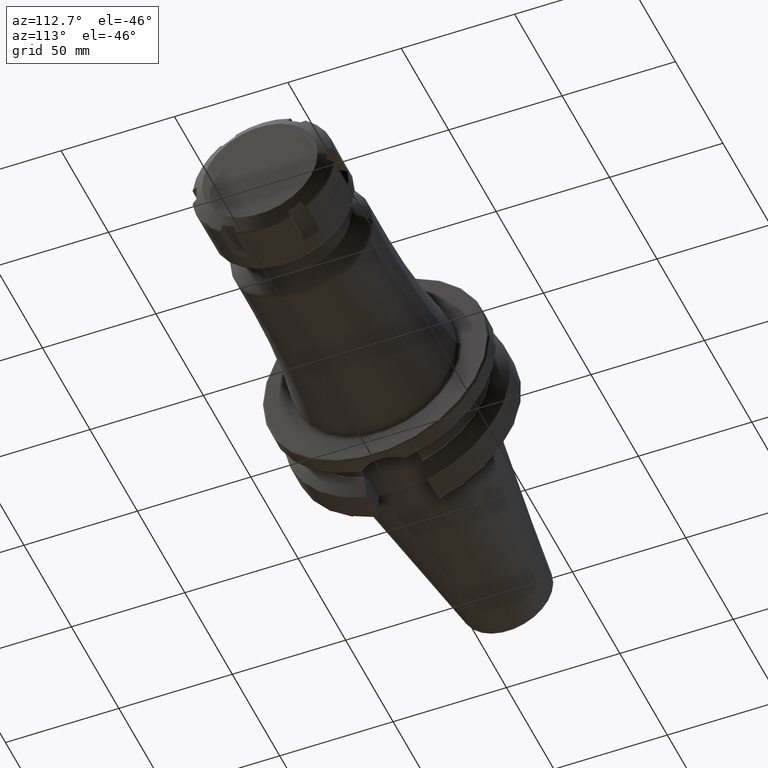
[diagram: clean part render]
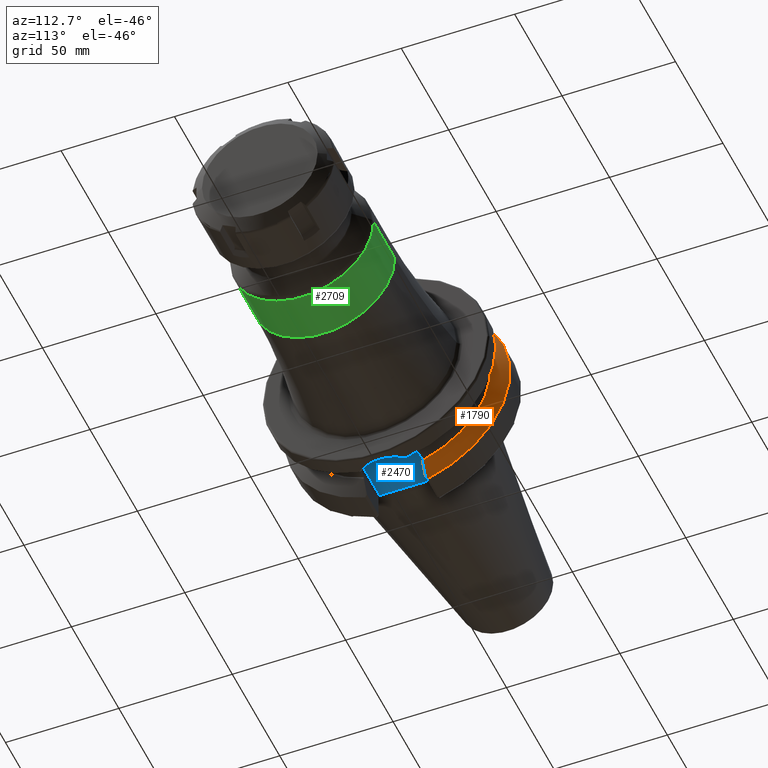
[diagram: same view with three faces highlighted in distinct colors, each labeled with its STEP entity id]
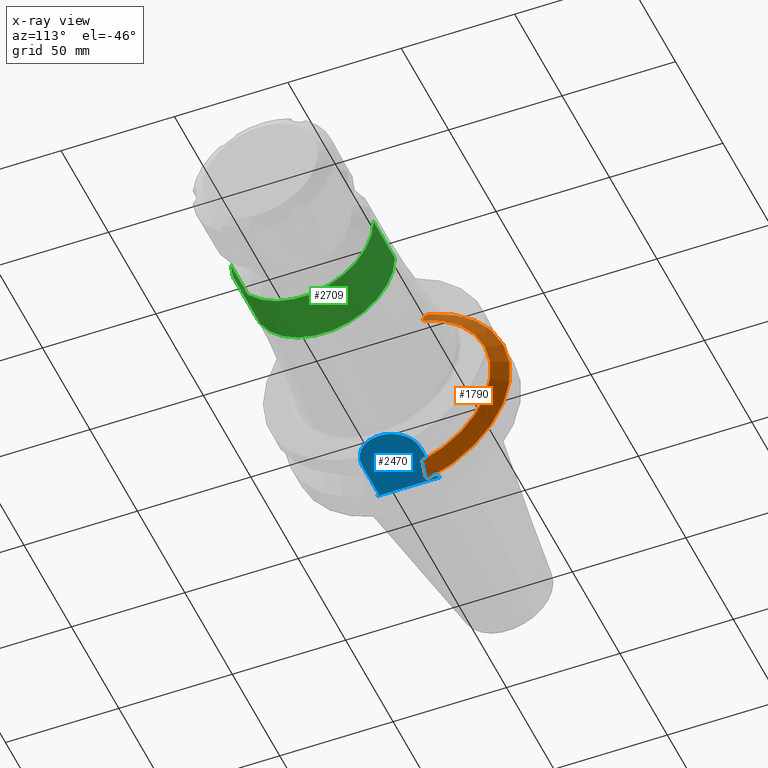
[diagram: x-ray of the same camera — body ghosted, the three highlighted faces saturated]
A machine part, auxiliary view with three faces highlighted in distinct colors.
The next image is the same camera in x-ray (body ghosted, the three faces saturated) — at least one of them is partly hidden behind the body in this view.
Their STEP definitions:

[orange] entity #1790 — the highlighted conical surface has half-angle 60 deg.
#155=CARTESIAN_POINT('',(1.622095963665E1,1.29025E1,-4.730399207105E1));
#156=CARTESIAN_POINT('',(1.662669026161E1,1.29025E1,-4.657557402361E1));
#157=CARTESIAN_POINT('',(1.742260565809E1,1.29025E1,-4.514431612004E1));
#158=CARTESIAN_POINT('',(1.856905625010E1,1.29025E1,-4.307542937668E1));
#159=CARTESIAN_POINT('',(1.930314152587E1,1.29025E1,-4.174554585365E1));
#160=CARTESIAN_POINT('',(1.96625E1,1.29025E1,-4.109315892118E1));
#199=CARTESIAN_POINT('',(1.96625E1,0.E0,0.E0));
#200=DIRECTION('',(1.E0,0.E0,0.E0));
#201=DIRECTION('',(0.E0,2.995626091154E-1,-9.540766443111E-1));
#202=AXIS2_PLACEMENT_3D('',#199,#200,#201);
#236=CARTESIAN_POINT('',(1.566933176383E1,0.E0,0.E0));
#237=DIRECTION('',(1.E0,0.E0,0.E0));
#238=DIRECTION('',(0.E0,2.773348004750E-1,-9.607733387462E-1));
#239=AXIS2_PLACEMENT_3D('',#236,#237,#238);
#619=CARTESIAN_POINT('',(1.622095963665E1,1.29025E1,-4.730399207105E1));
#620=CARTESIAN_POINT('',(1.613096430694E1,1.306014121039E1,-4.742256511233E1));
#621=CARTESIAN_POINT('',(1.594903614998E1,1.337791318372E1,-4.766158376246E1));
#622=CARTESIAN_POINT('',(1.576321741956E1,1.370065861291E1,-4.790434329853E1));
#623=CARTESIAN_POINT('',(1.566933176383E1,1.386327333875E1,-4.802665727057E1));
#629=CARTESIAN_POINT('',(1.566933176383E1,1.418629688696E1,4.793223484134E1));
#630=CARTESIAN_POINT('',(1.579541037781E1,1.396792232179E1,4.776912806803E1));
#631=CARTESIAN_POINT('',(1.604410287708E1,1.353557739826E1,4.744620408016E1));
#632=CARTESIAN_POINT('',(1.628589948132E1,1.311205342535E1,4.712986857385E1));
#633=CARTESIAN_POINT('',(1.640508297825E1,1.29025E1,4.697335042340E1));
#668=CARTESIAN_POINT('',(1.96625E1,1.29025E1,4.109315892118E1));
#669=CARTESIAN_POINT('',(1.932181966297E1,1.29025E1,4.171163717070E1));
#670=CARTESIAN_POINT('',(1.862628256782E1,1.29025E1,4.297182203666E1));
#671=CARTESIAN_POINT('',(1.754114212137E1,1.29025E1,4.493063136453E1));
#672=CARTESIAN_POINT('',(1.678855217457E1,1.29025E1,4.628456220339E1));
#673=CARTESIAN_POINT('',(1.640508297825E1,1.29025E1,4.697335042340E1));
#1292=CARTESIAN_POINT('',(1.96625E1,1.29025E1,-4.109315892118E1));
#1293=CARTESIAN_POINT('',(1.96625E1,1.29025E1,4.109315892118E1));
#1294=VERTEX_POINT('',#1292);
#1295=VERTEX_POINT('',#1293);
#1400=VERTEX_POINT('',#673);
#1408=VERTEX_POINT('',#155);
#1418=CARTESIAN_POINT('',(1.566933176383E1,1.386327333875E1,-4.802665727057E1));
#1419=CARTESIAN_POINT('',(1.566933176383E1,1.418629688696E1,4.793223484134E1));
#1420=VERTEX_POINT('',#1418);
#1421=VERTEX_POINT('',#1419);
#1773=CARTESIAN_POINT('',(1.766591588191E1,0.E0,0.E0));
#1774=DIRECTION('',(-1.E0,0.E0,0.E0));
#1775=DIRECTION('',(0.E0,1.E0,0.E0));
#1776=AXIS2_PLACEMENT_3D('',#1773,#1774,#1775);
#1777=CONICAL_SURFACE('',#1776,4.652931486589E1,6.E1);
#1779=ORIENTED_EDGE('',*,*,#1778,.F.);
#1781=ORIENTED_EDGE('',*,*,#1780,.F.);
#1782=ORIENTED_EDGE('',*,*,#1724,.T.);
#1783=ORIENTED_EDGE('',*,*,#1747,.T.);
#1785=ORIENTED_EDGE('',*,*,#1784,.T.);
#1787=ORIENTED_EDGE('',*,*,#1786,.F.);
#1788=EDGE_LOOP('',(#1779,#1781,#1782,#1783,#1785,#1787));
#1789=FACE_OUTER_BOUND('',#1788,.F.);
#1790=ADVANCED_FACE('',(#1789),#1777,.T.);
#161=B_SPLINE_CURVE_WITH_KNOTS('',3,(#155,#156,#157,#158,#159,#160),
.UNSPECIFIED.,.F.,.F.,(4,1,1,4),(0.E0,3.333333333333E-1,6.666666666667E-1,1.E0),
.UNSPECIFIED.);
#203=CIRCLE('',#202,4.307112973177E1);
#240=CIRCLE('',#239,4.99875E1);
#624=B_SPLINE_CURVE_WITH_KNOTS('',3,(#619,#620,#621,#622,#623),.UNSPECIFIED.,
.F.,.F.,(4,1,4),(0.E0,5.E-1,1.E0),.UNSPECIFIED.);
#634=B_SPLINE_CURVE_WITH_KNOTS('',3,(#629,#630,#631,#632,#633),.UNSPECIFIED.,
.F.,.F.,(4,1,4),(0.E0,5.E-1,1.E0),.UNSPECIFIED.);
#674=B_SPLINE_CURVE_WITH_KNOTS('',3,(#668,#669,#670,#671,#672,#673),
.UNSPECIFIED.,.F.,.F.,(4,1,1,4),(0.E0,3.333333333333E-1,6.666666666667E-1,1.E0),
.UNSPECIFIED.);
#1724=EDGE_CURVE('',#1408,#1294,#161,.T.);
#1747=EDGE_CURVE('',#1294,#1295,#203,.T.);
#1778=EDGE_CURVE('',#1420,#1421,#240,.T.);
#1780=EDGE_CURVE('',#1408,#1420,#624,.T.);
#1784=EDGE_CURVE('',#1295,#1400,#674,.T.);
#1786=EDGE_CURVE('',#1421,#1400,#634,.T.);

[blue] entity #2470 — the highlighted planar face has unit normal (0, 0, 1).
#116=CARTESIAN_POINT('',(3.E0,5.151759408202E0,-3.52E1));
#117=CARTESIAN_POINT('',(3.E0,4.661054534870E0,-3.52E1));
#118=CARTESIAN_POINT('',(2.985185415827E0,3.679726334622E0,-3.52E1));
#119=CARTESIAN_POINT('',(2.950323079572E0,2.207949548567E0,-3.52E1));
#120=CARTESIAN_POINT('',(2.926055980585E0,7.360772187789E-1,-3.52E1));
#121=CARTESIAN_POINT('',(2.926055295134E0,-7.360096390892E-1,-3.52E1));
#122=CARTESIAN_POINT('',(2.950321957577E0,-2.207902449886E0,-3.52E1));
#123=CARTESIAN_POINT('',(2.985185074233E0,-3.679708044781E0,-3.52E1));
#124=CARTESIAN_POINT('',(3.E0,-4.661048861242E0,-3.52E1));
#125=CARTESIAN_POINT('',(3.E0,-5.151759408202E0,-3.52E1));
#147=DIRECTION('',(7.071067811865E-1,-7.071067811865E-1,0.E0));
#148=VECTOR('',#147,1.414213562373E0);
#149=CARTESIAN_POINT('',(3.E0,1.39025E1,-3.52E1));
#150=LINE('',#149,#148);
#733=DIRECTION('',(-7.071067811865E-1,-7.071067811865E-1,0.E0));
#734=VECTOR('',#733,1.414213562373E0);
#735=CARTESIAN_POINT('',(4.E0,-1.29025E1,-3.52E1));
#736=LINE('',#735,#734);
#737=DIRECTION('',(-1.E0,0.E0,0.E0));
#738=VECTOR('',#737,1.73475E1);
#739=CARTESIAN_POINT('',(2.13475E1,1.29025E1,-3.52E1));
#740=LINE('',#739,#738);
#741=DIRECTION('',(0.E0,-1.E0,0.E0));
#742=VECTOR('',#741,8.750740591798E0);
#743=CARTESIAN_POINT('',(3.E0,1.39025E1,-3.52E1));
#744=LINE('',#743,#742);
#745=DIRECTION('',(0.E0,-1.E0,0.E0));
#746=VECTOR('',#745,8.750740591798E0);
#747=CARTESIAN_POINT('',(3.E0,-5.151759408202E0,-3.52E1));
#748=LINE('',#747,#746);
#749=DIRECTION('',(1.E0,0.E0,0.E0));
#750=VECTOR('',#749,1.73475E1);
#751=CARTESIAN_POINT('',(4.E0,-1.29025E1,-3.52E1));
#752=LINE('',#751,#750);
#753=CARTESIAN_POINT('',(2.13475E1,0.E0,-3.52E1));
#754=DIRECTION('',(0.E0,0.E0,1.E0));
#755=DIRECTION('',(0.E0,-1.E0,0.E0));
#756=AXIS2_PLACEMENT_3D('',#753,#754,#755);
#1390=CARTESIAN_POINT('',(2.13475E1,-1.29025E1,-3.52E1));
#1391=CARTESIAN_POINT('',(2.13475E1,1.29025E1,-3.52E1));
#1392=VERTEX_POINT('',#1390);
#1393=VERTEX_POINT('',#1391);
#1394=CARTESIAN_POINT('',(3.E0,5.151759408202E0,-3.52E1));
#1395=VERTEX_POINT('',#1394);
#1396=CARTESIAN_POINT('',(3.E0,-5.151759408202E0,-3.52E1));
#1397=VERTEX_POINT('',#1396);
#1443=CARTESIAN_POINT('',(4.E0,1.29025E1,-3.52E1));
#1445=VERTEX_POINT('',#1443);
#1447=CARTESIAN_POINT('',(3.E0,1.39025E1,-3.52E1));
#1449=VERTEX_POINT('',#1447);
#1453=CARTESIAN_POINT('',(3.E0,-1.39025E1,-3.52E1));
#1454=VERTEX_POINT('',#1453);
#1455=CARTESIAN_POINT('',(4.E0,-1.29025E1,-3.52E1));
#1457=VERTEX_POINT('',#1455);
#2455=CARTESIAN_POINT('',(0.E0,0.E0,-3.52E1));
#2456=DIRECTION('',(0.E0,0.E0,1.E0));
#2457=DIRECTION('',(1.E0,0.E0,0.E0));
#2458=AXIS2_PLACEMENT_3D('',#2455,#2456,#2457);
#2459=PLANE('',#2458);
#2460=ORIENTED_EDGE('',*,*,#1731,.T.);
#2461=ORIENTED_EDGE('',*,*,#1712,.F.);
#2462=ORIENTED_EDGE('',*,*,#1676,.T.);
#2463=ORIENTED_EDGE('',*,*,#1655,.T.);
#2464=ORIENTED_EDGE('',*,*,#1688,.T.);
#2465=ORIENTED_EDGE('',*,*,#2450,.F.);
#2466=ORIENTED_EDGE('',*,*,#1886,.T.);
#2467=ORIENTED_EDGE('',*,*,#1980,.T.);
#2468=EDGE_LOOP('',(#2460,#2461,#2462,#2463,#2464,#2465,#2466,#2467));
#2469=FACE_OUTER_BOUND('',#2468,.F.);
#2470=ADVANCED_FACE('',(#2469),#2459,.F.);
#126=B_SPLINE_CURVE_WITH_KNOTS('',3,(#116,#117,#118,#119,#120,#121,#122,#123,
#124,#125),.UNSPECIFIED.,.F.,.F.,(4,1,1,1,1,1,1,4),(0.E0,1.428571428571E-1,
2.857142857143E-1,4.285714285714E-1,5.714285714286E-1,7.142857142857E-1,
8.571428571429E-1,1.E0),.UNSPECIFIED.);
#757=CIRCLE('',#756,1.29025E1);
#1655=EDGE_CURVE('',#1395,#1397,#126,.T.);
#1676=EDGE_CURVE('',#1449,#1395,#744,.T.);
#1688=EDGE_CURVE('',#1397,#1454,#748,.T.);
#1712=EDGE_CURVE('',#1449,#1445,#150,.T.);
#1731=EDGE_CURVE('',#1393,#1445,#740,.T.);
#1886=EDGE_CURVE('',#1457,#1392,#752,.T.);
#1980=EDGE_CURVE('',#1392,#1393,#757,.T.);
#2450=EDGE_CURVE('',#1457,#1454,#736,.T.);

[green] entity #2709 — the highlighted cylindrical surface (partial cylindrical patch) has radius 31.5 mm, axis along (1, 0, 0).
#874=CARTESIAN_POINT('',(9.3E1,0.E0,0.E0));
#875=DIRECTION('',(1.E0,0.E0,0.E0));
#876=DIRECTION('',(0.E0,-1.E0,0.E0));
#877=AXIS2_PLACEMENT_3D('',#874,#875,#876);
#879=DIRECTION('',(-1.E0,0.E0,-4.471719852348E-14));
#880=VECTOR('',#879,2.235735931288E1);
#881=CARTESIAN_POINT('',(1.153573593129E2,-3.15E1,9.945935873054E-13));
#882=LINE('',#881,#880);
#883=CARTESIAN_POINT('',(1.153573593129E2,0.E0,0.E0));
#884=DIRECTION('',(-1.E0,0.E0,0.E0));
#885=DIRECTION('',(0.E0,1.E0,0.E0));
#886=AXIS2_PLACEMENT_3D('',#883,#884,#885);
#888=DIRECTION('',(-1.E0,0.E0,4.470217430353E-14));
#889=VECTOR('',#888,2.235735931288E1);
#890=CARTESIAN_POINT('',(1.153573593129E2,3.15E1,-9.955649355536E-13));
#891=LINE('',#890,#889);
#1491=CARTESIAN_POINT('',(1.153573593129E2,3.15E1,0.E0));
#1492=CARTESIAN_POINT('',(1.153573593129E2,-3.15E1,0.E0));
#1493=VERTEX_POINT('',#1491);
#1494=VERTEX_POINT('',#1492);
#1499=CARTESIAN_POINT('',(9.3E1,3.15E1,0.E0));
#1500=CARTESIAN_POINT('',(9.3E1,-3.15E1,0.E0));
#1501=VERTEX_POINT('',#1499);
#1502=VERTEX_POINT('',#1500);
#2695=CARTESIAN_POINT('',(3.2645E1,0.E0,0.E0));
#2696=DIRECTION('',(1.E0,0.E0,0.E0));
#2697=DIRECTION('',(0.E0,-1.E0,0.E0));
#2698=AXIS2_PLACEMENT_3D('',#2695,#2696,#2697);
#2699=CYLINDRICAL_SURFACE('',#2698,3.15E1);
#2700=ORIENTED_EDGE('',*,*,#2689,.F.);
#2702=ORIENTED_EDGE('',*,*,#2701,.F.);
#2704=ORIENTED_EDGE('',*,*,#2703,.F.);
#2706=ORIENTED_EDGE('',*,*,#2705,.T.);
#2707=EDGE_LOOP('',(#2700,#2702,#2704,#2706));
#2708=FACE_OUTER_BOUND('',#2707,.F.);
#2709=ADVANCED_FACE('',(#2708),#2699,.T.);
#878=CIRCLE('',#877,3.15E1);
#887=CIRCLE('',#886,3.15E1);
#2689=EDGE_CURVE('',#1502,#1501,#878,.T.);
#2701=EDGE_CURVE('',#1494,#1502,#882,.T.);
#2703=EDGE_CURVE('',#1493,#1494,#887,.T.);
#2705=EDGE_CURVE('',#1493,#1501,#891,.T.);